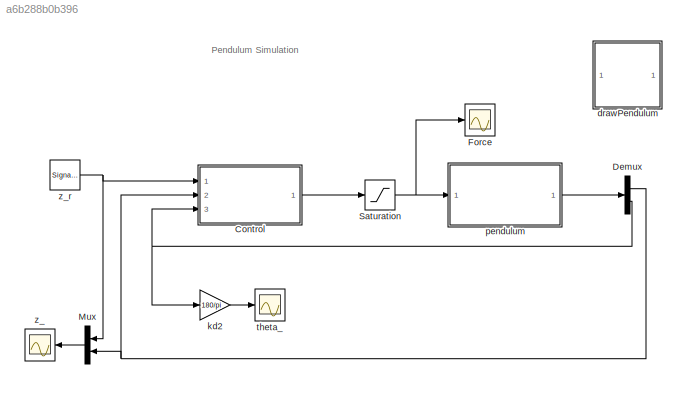
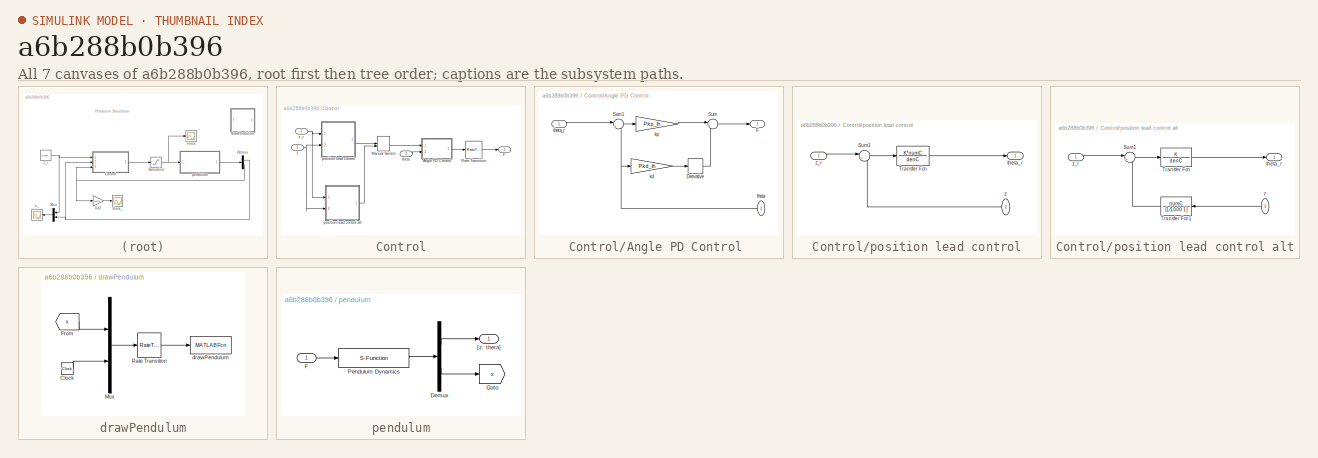
[diagram: thumbnail index - all 7 canvases of the model, root first then tree order]
MODEL slx_a6b288b0b396
KIND model
CONFIG AbsTol = auto
CONFIG EnableMultiTasking = on
CONFIG FixedStep = auto
CONFIG InitFcn = addpath ./..\npendulum_param\npendulumParamHWf
CONFIG MaxStep = auto
CONFIG MinStep = auto
CONFIG RelTol = 1e-3
CONFIG SampleTimeConstraint = Unconstrained
CONFIG Solver = ode45
CONFIG SolverName = ode45
CONFIG StartTime = 0.0
CONFIG StopTime = P.t_end
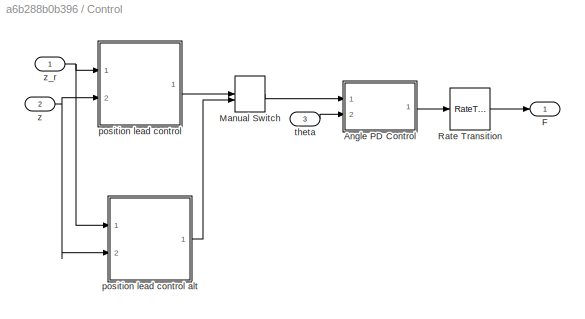
BLOCK [SubSystem] Control
  Ports = [3, 1]
  RequestExecContextInheritance = off
  Variant = off
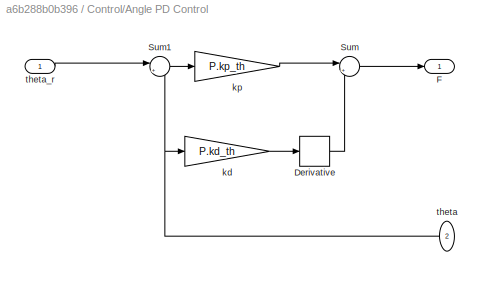
BLOCK [SubSystem] Control/Angle PD Control 
  Ports = [2, 1]
  RequestExecContextInheritance = off
  Variant = off
BLOCK [Derivative] Control/Angle PD Control /Derivative
  CoefficientInTFapproximation = P.sigma
BLOCK [Outport] Control/Angle PD Control /F
  IconDisplay = Port number
BLOCK [Sum] Control/Angle PD Control /Sum
  IconShape = round
  InputSameDT = off
  Inputs = |+-
  OutDataTypeStr = Inherit: Inherit via internal rule
  Ports = [2, 1]
  SaturateOnIntegerOverflow = off
BLOCK [Sum] Control/Angle PD Control /Sum1
  IconShape = round
  InputSameDT = off
  Inputs = |+-
  OutDataTypeStr = Inherit: Inherit via internal rule
  Ports = [2, 1]
  SaturateOnIntegerOverflow = off
BLOCK [Gain] Control/Angle PD Control /kd
  Gain = P.kd_th
  OutDataTypeStr = Inherit: Inherit via internal rule
  ParamDataTypeStr = Inherit: Inherit via internal rule
  SaturateOnIntegerOverflow = off
BLOCK [Gain] Control/Angle PD Control /kp
  Gain = P.kp_th
  OutDataTypeStr = Inherit: Inherit via internal rule
  ParamDataTypeStr = Inherit: Inherit via internal rule
  SaturateOnIntegerOverflow = off
BLOCK [Inport] Control/Angle PD Control /theta
  IconDisplay = Port number
  Port = 2
BLOCK [Inport] Control/Angle PD Control /theta_r
  IconDisplay = Port number
BLOCK [Outport] Control/F
  IconDisplay = Port number
BLOCK [ManualSwitch] Control/Manual Switch
BLOCK [RateTransition] Control/Rate Transition
  OutPortSampleTime = P.Ts
BLOCK [SubSystem] Control/position lead control
  Ports = [2, 1]
  RequestExecContextInheritance = off
  Variant = off
BLOCK [SubSystem] Control/position lead control alt
  Ports = [2, 1]
  RequestExecContextInheritance = off
  Variant = off
BLOCK [Sum] Control/position lead control alt/Sum1
  IconShape = round
  InputSameDT = off
  Inputs = |+-
  OutDataTypeStr = Inherit: Inherit via internal rule
  Ports = [2, 1]
  SaturateOnIntegerOverflow = off
BLOCK [TransferFcn] Control/position lead control alt/Transfer Fcn
  Denominator = denC
  Numerator = K
BLOCK [TransferFcn] Control/position lead control alt/Transfer Fcn1
  Denominator = [1/1000 1]
  Numerator = numC
BLOCK [Outport] Control/position lead control alt/theta_r
  IconDisplay = Port number
BLOCK [Inport] Control/position lead control alt/z
  IconDisplay = Port number
  Port = 2
BLOCK [Inport] Control/position lead control alt/z_r
  IconDisplay = Port number
BLOCK [Sum] Control/position lead control/Sum1
  IconShape = round
  InputSameDT = off
  Inputs = |+-
  OutDataTypeStr = Inherit: Inherit via internal rule
  Ports = [2, 1]
  SaturateOnIntegerOverflow = off
BLOCK [TransferFcn] Control/position lead control/Transfer Fcn
  Denominator = denC
  Numerator = K*numC
BLOCK [Outport] Control/position lead control/theta_r
  IconDisplay = Port number
BLOCK [Inport] Control/position lead control/z
  IconDisplay = Port number
  Port = 2
BLOCK [Inport] Control/position lead control/z_r
  IconDisplay = Port number
BLOCK [Inport] Control/theta
  IconDisplay = Port number
  Port = 3
BLOCK [Inport] Control/z
  IconDisplay = Port number
  Port = 2
BLOCK [Inport] Control/z_r
  IconDisplay = Port number
BLOCK [Demux] Demux
  DisplayOption = bar
  Outputs = 2
  Ports = [1, 2]
BLOCK [Scope] Force
  NumInputPorts = 1
  Ports = [1]
  ScopeSpecificationString = Simulink.scopes.TimeScopeBlockCfg('CurrentConfiguration', extmgr.ConfigurationSet(extmgr.Configuration('Core','General UI',true),extmgr.Configuration('Core','Source UI',true),extmgr.Configuration('Sources','WiredSimulink',true,'DataLoggingSaveFormat','StructureWithTime','DataLoggingLimitDataPoints',true,'DataLoggingDecimation','1','DataLoggingDecimateData',true,'DataLoggingVariableName','ScopeData...<+1746ch>
BLOCK [Mux] Mux
  DisplayOption = bar
  Inputs = 2
  Ports = [2, 1]
BLOCK [Saturate] Saturation
  InputPortMap = u0
  LowerLimit = -P.F_max
  Ports = [1, 1]
  UpperLimit = P.F_max
BLOCK [SubSystem] drawPendulum
  Ports = []
  RequestExecContextInheritance = off
  Variant = off
BLOCK [Clock] drawPendulum/Clock
BLOCK [From] drawPendulum/From
  GotoTag = x
  TagVisibility = global
BLOCK [Mux] drawPendulum/Mux
  DisplayOption = bar
  Inputs = 2
  Ports = [2, 1]
BLOCK [RateTransition] drawPendulum/Rate Transition
  OutPortSampleTime = P.t_plot
BLOCK [MATLABFcn] drawPendulum/drawPendulum
  MATLABFcn = pendulum_animation(u)
  OutputDimensions = 0
  Ports = [1]
BLOCK [Gain] kd2
  Gain = 180/pi
  OutDataTypeStr = Inherit: Inherit via internal rule
  ParamDataTypeStr = Inherit: Inherit via internal rule
  SaturateOnIntegerOverflow = off
BLOCK [SubSystem] pendulum
  Ports = [1, 1]
  RequestExecContextInheritance = off
  Variant = off
BLOCK [Demux] pendulum/Demux
  DisplayOption = bar
  Outputs = [2;4]
  Ports = [1, 2]
BLOCK [Inport] pendulum/F
  IconDisplay = Port number
BLOCK [Goto] pendulum/Goto
  GotoTag = x
  TagVisibility = global
BLOCK [S-Function] pendulum/Pendulum Dynamics
  EnableBusSupport = off
  FunctionName = pendulum_dynamics
  Parameters = P
  Ports = [1, 1]
  SFcnIsStateOwnerBlock = off
  SFunctionDeploymentMode = off
BLOCK [Outport] pendulum/[z; theta]
  IconDisplay = Port number
BLOCK [Scope] theta_
  NumInputPorts = 1
  Ports = [1]
  ScopeSpecificationString = Simulink.scopes.TimeScopeBlockCfg('CurrentConfiguration', extmgr.ConfigurationSet(extmgr.Configuration('Core','General UI',true),extmgr.Configuration('Core','Source UI',true),extmgr.Configuration('Sources','WiredSimulink',true,'DataLoggingSaveFormat','StructureWithTime','DataLoggingDecimation','1','DataLoggingDecimateData',true,'DataLoggingVariableName','ScopeData1'),extmgr.Configuration('Visuals'...<+1711ch>
BLOCK [Scope] z_
  NumInputPorts = 1
  Ports = [1]
  ScopeSpecificationString = Simulink.scopes.TimeScopeBlockCfg('CurrentConfiguration', extmgr.ConfigurationSet(extmgr.Configuration('Core','General UI',true),extmgr.Configuration('Core','Source UI',true),extmgr.Configuration('Sources','WiredSimulink',true,'DataLoggingVariableName','ScopeData2','DataLoggingSaveFormat','StructureWithTime','DataLoggingDecimation','1','DataLoggingDecimateData',true),extmgr.Configuration('Visuals'...<+1707ch>
BLOCK [SignalGenerator] z_r
  Amplitude = 0.5
  Frequency = .025
  Ports = [0, 1]
  WaveForm = square
ANNOTATION (root): Pendulum Simulation
LINE Control/Angle PD Control /Derivative:1 -> Control/Angle PD Control /Sum:2
LINE Control/Angle PD Control /Sum1:1 -> Control/Angle PD Control /kp:1
LINE Control/Angle PD Control /Sum:1 -> Control/Angle PD Control /F:1
LINE Control/Angle PD Control /kd:1 -> Control/Angle PD Control /Derivative:1
LINE Control/Angle PD Control /kp:1 -> Control/Angle PD Control /Sum:1
NET Control/Angle PD Control /theta:1 -> Control/Angle PD Control /Sum1:2, Control/Angle PD Control /kd:1
LINE Control/Angle PD Control /theta_r:1 -> Control/Angle PD Control /Sum1:1
LINE Control/Angle PD Control :1 -> Control/Rate Transition:1
LINE Control/Manual Switch:1 -> Control/Angle PD Control :1
LINE Control/Rate Transition:1 -> Control/F:1
LINE Control/position lead control alt/Sum1:1 -> Control/position lead control alt/Transfer Fcn:1
LINE Control/position lead control alt/Transfer Fcn1:1 -> Control/position lead control alt/Sum1:2
LINE Control/position lead control alt/Transfer Fcn:1 -> Control/position lead control alt/theta_r:1
LINE Control/position lead control alt/z:1 -> Control/position lead control alt/Transfer Fcn1:1
LINE Control/position lead control alt/z_r:1 -> Control/position lead control alt/Sum1:1
LINE Control/position lead control alt:1 -> Control/Manual Switch:2
LINE Control/position lead control/Sum1:1 -> Control/position lead control/Transfer Fcn:1
LINE Control/position lead control/Transfer Fcn:1 -> Control/position lead control/theta_r:1
LINE Control/position lead control/z:1 -> Control/position lead control/Sum1:2
LINE Control/position lead control/z_r:1 -> Control/position lead control/Sum1:1
LINE Control/position lead control:1 -> Control/Manual Switch:1
LINE Control/theta:1 -> Control/Angle PD Control :2
NET Control/z:1 -> Control/position lead control alt:2, Control/position lead control:2
NET Control/z_r:1 -> Control/position lead control alt:1, Control/position lead control:1
LINE Control:1 -> Saturation:1
NET Demux:1 -> Control:2, Mux:2
NET Demux:2 -> Control:3, kd2:1
LINE Mux:1 -> z_:1
NET Saturation:1 -> Force:1, pendulum:1
LINE drawPendulum/Clock:1 -> drawPendulum/Mux:2
LINE drawPendulum/From:1 -> drawPendulum/Mux:1
LINE drawPendulum/Mux:1 -> drawPendulum/Rate Transition:1
LINE drawPendulum/Rate Transition:1 -> drawPendulum/drawPendulum:1
LINE kd2:1 -> theta_:1
LINE pendulum/Demux:1 -> pendulum/[z; theta]:1
LINE pendulum/Demux:2 -> pendulum/Goto:1
LINE pendulum/F:1 -> pendulum/Pendulum Dynamics:1
LINE pendulum/Pendulum Dynamics:1 -> pendulum/Demux:1
LINE pendulum:1 -> Demux:1
NET z_r:1 -> Control:1, Mux:1
note: NET lines group one-source signal fan-out (src -> all destinations, sorted); 1:1 wires keep LINE
